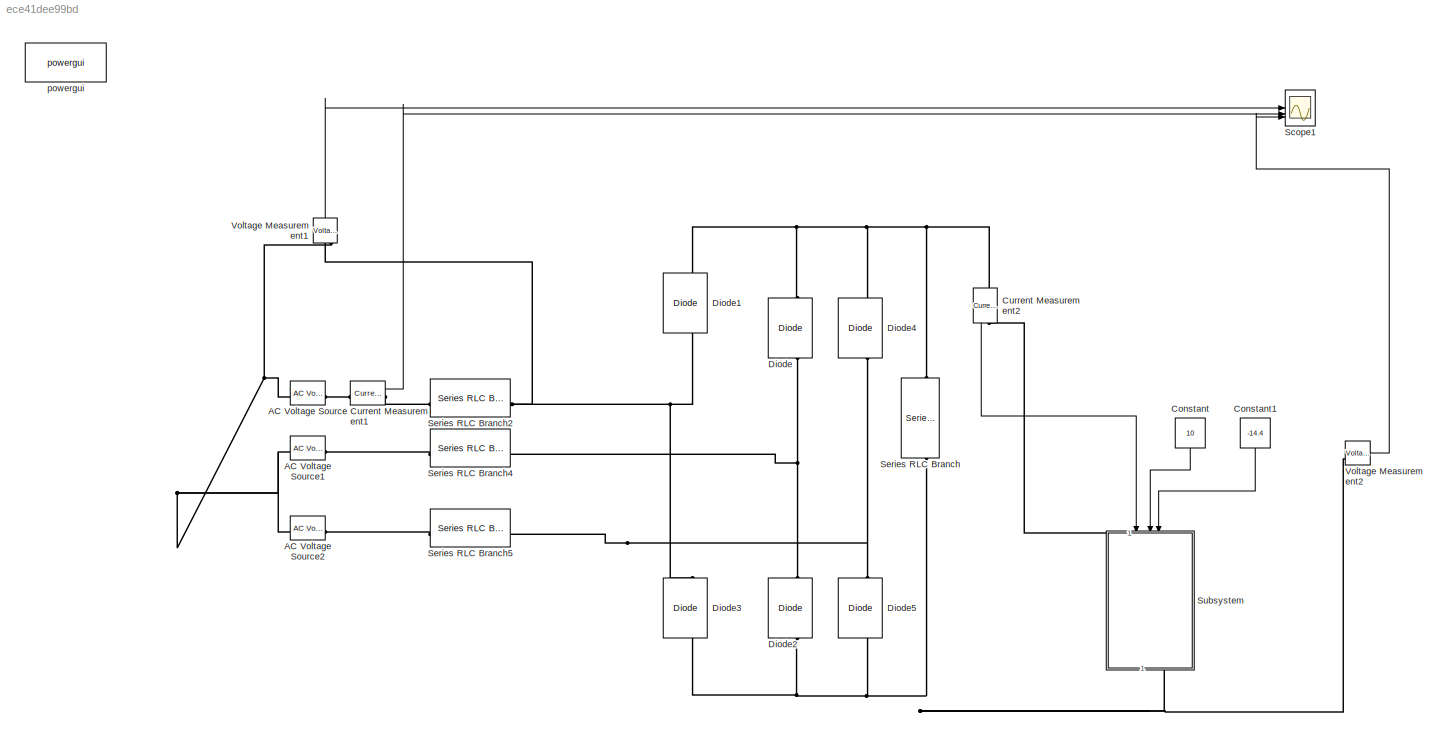
MODEL slx_ece41dee99bd
KIND model
CONFIG AbsTol = auto
CONFIG EnableMultiTasking = off
CONFIG FixedStep = auto
CONFIG MaxStep = tstepMax
CONFIG MinStep = auto
CONFIG RelTol = 1e-3
CONFIG SampleTimeConstraint = Unconstrained
CONFIG SolverName = VariableStepAuto
CONFIG StartTime = 0.0
CONFIG StopTime = 400e-3
BLOCK [Reference] AC Voltage Source  REF=spsACVoltageSourceLib/AC Voltage Source
  LibrarySourceBlock = sps_lib/Sources/AC Voltage Source
  NameLocation = left
  SourceBlock = spsACVoltageSourceLib/AC Voltage Source
  SourceType = AC Voltage Source
BLOCK [Reference] AC Voltage Source1  REF=spsACVoltageSourceLib/AC Voltage Source
  LibrarySourceBlock = sps_lib/Sources/AC Voltage Source
  NameLocation = left
  SourceBlock = spsACVoltageSourceLib/AC Voltage Source
  SourceType = AC Voltage Source
BLOCK [Reference] AC Voltage Source2  REF=spsACVoltageSourceLib/AC Voltage Source
  LibrarySourceBlock = sps_lib/Sources/AC Voltage Source
  NameLocation = left
  SourceBlock = spsACVoltageSourceLib/AC Voltage Source
  SourceType = AC Voltage Source
BLOCK [Constant] Constant
  NameLocation = left
  Value = 10
BLOCK [Constant] Constant1
  NameLocation = left
  Value = -14.4
BLOCK [Reference] Current Measurement1  REF=spsCurrentMeasurementLib/Current Measurement
  LibrarySourceBlock = sps_lib/Sensors and Measurements/Current Measurement
  SourceBlock = spsCurrentMeasurementLib/Current Measurement
  SourceType = Current Measurement
  UserDataPersistent = on
BLOCK [Reference] Current Measurement2  REF=spsCurrentMeasurementLib/Current Measurement
  LibrarySourceBlock = sps_lib/Sensors and Measurements/Current Measurement
  NameLocation = left
  SourceBlock = spsCurrentMeasurementLib/Current Measurement
  SourceType = Current Measurement
  UserDataPersistent = on
BLOCK [Reference] Diode  REF=spsDiodeLib/Diode
  LibrarySourceBlock = sps_lib/Power Electronics/Diode
  NameLocation = right
  SourceBlock = spsDiodeLib/Diode
  SourceType = Diode
BLOCK [Reference] Diode1  REF=spsDiodeLib/Diode
  LibrarySourceBlock = sps_lib/Power Electronics/Diode
  NameLocation = right
  SourceBlock = spsDiodeLib/Diode
  SourceType = Diode
BLOCK [Reference] Diode2  REF=spsDiodeLib/Diode
  LibrarySourceBlock = sps_lib/Power Electronics/Diode
  NameLocation = right
  SourceBlock = spsDiodeLib/Diode
  SourceType = Diode
BLOCK [Reference] Diode3  REF=spsDiodeLib/Diode
  LibrarySourceBlock = sps_lib/Power Electronics/Diode
  NameLocation = right
  SourceBlock = spsDiodeLib/Diode
  SourceType = Diode
BLOCK [Reference] Diode4  REF=spsDiodeLib/Diode
  LibrarySourceBlock = sps_lib/Power Electronics/Diode
  NameLocation = right
  SourceBlock = spsDiodeLib/Diode
  SourceType = Diode
BLOCK [Reference] Diode5  REF=spsDiodeLib/Diode
  LibrarySourceBlock = sps_lib/Power Electronics/Diode
  NameLocation = right
  SourceBlock = spsDiodeLib/Diode
  SourceType = Diode
BLOCK [Scope] Scope1
  Floating = off
  NumInputPorts = 4
  ScopeSpecificationString = Simulink.scopes.TimeScopeBlockCfg('CurrentConfiguration', extmgr.ConfigurationSet(extmgr.Configuration('Core','General UI',true,'FigureColor',[1 1 1],'DisplayFullSourceName',true),extmgr.Configuration('Core','Source UI',true),extmgr.Configuration('Sources','WiredSimulink',true,'DataLoggingVariableName','OutputData1','DataLogging',true,'DataLoggingMaxPoints','453'),extmgr.Configuration('Visuals','T...<+4376ch>
BLOCK [Reference] Series RLC Branch  REF=spsSeriesRLCBranchLib/Series RLC Branch
  LibrarySourceBlock = sps_lib/Passives/Series RLC Branch
  NameLocation = left
  SourceBlock = spsSeriesRLCBranchLib/Series RLC Branch
  SourceType = Series RLC Branch
BLOCK [Reference] Series RLC Branch2  REF=spsSeriesRLCBranchLib/Series RLC Branch
  LibrarySourceBlock = sps_lib/Passives/Series RLC Branch
  NameLocation = top
  SourceBlock = spsSeriesRLCBranchLib/Series RLC Branch
  SourceType = Series RLC Branch
BLOCK [Reference] Series RLC Branch4  REF=spsSeriesRLCBranchLib/Series RLC Branch
  LibrarySourceBlock = sps_lib/Passives/Series RLC Branch
  NameLocation = top
  SourceBlock = spsSeriesRLCBranchLib/Series RLC Branch
  SourceType = Series RLC Branch
BLOCK [Reference] Series RLC Branch5  REF=spsSeriesRLCBranchLib/Series RLC Branch
  LibrarySourceBlock = sps_lib/Passives/Series RLC Branch
  NameLocation = top
  SourceBlock = spsSeriesRLCBranchLib/Series RLC Branch
  SourceType = Series RLC Branch
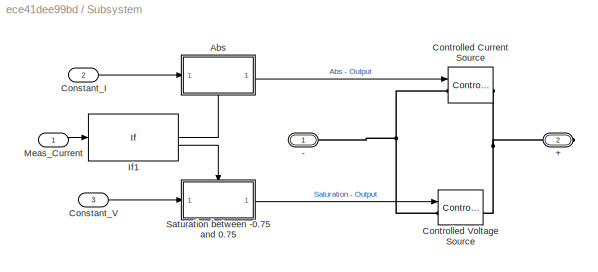
BLOCK [SubSystem] Subsystem
  NameLocation = left
  PortSchema = {"entries":[{"content":{"sides":[{"content":{"connectorIds":["LConn1","In1","In2","In3"]},"type":"ConnectorPlacement.EquallySpacedRectSide","uuid":"feaae4e9-bb6a-4e16-aae7-51a0d38361ce"},{"content":{"connectorIds":["RConn1"],"side":"RIGHT"},"type":"ConnectorPlacement.EquallySpacedRectSide","uuid":"0242307e-3fb3-4380-a5a2-342063310801"},{"content":{"side":"TOP"},"type":"ConnectorPlacement.EquallySp...<+245ch>
BLOCK [PMIOPort] Subsystem/+
  Port = 2
  Side = Right
BLOCK [PMIOPort] Subsystem/-
  NameLocation = top
  Side = Left
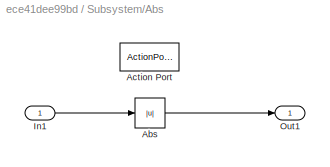
BLOCK [SubSystem] Subsystem/Abs
  NameLocation = top
  TreatAsAtomicUnit = on
BLOCK [Abs] Subsystem/Abs/Abs
  OutDataTypeStr = double
BLOCK [ActionPort] Subsystem/Abs/Action Port
  ActionPortLabel = if(u1 > 10)
BLOCK [Inport] Subsystem/Abs/In1
BLOCK [Outport] Subsystem/Abs/Out1
BLOCK [Inport] Subsystem/Constant_I
  Port = 2
BLOCK [Inport] Subsystem/Constant_V
  Port = 3
BLOCK [Reference] Subsystem/Controlled Current Source  REF=spsControlledCurrentSourceLib/Controlled Current Source
  LibrarySourceBlock = sps_lib/Sources/Controlled Current Source
  NameLocation = left
  SourceBlock = spsControlledCurrentSourceLib/Controlled Current Source
  SourceType = Controlled Current Source
BLOCK [Reference] Subsystem/Controlled Voltage Source  REF=spsControlledVoltageSourceLib/Controlled Voltage Source
  LibrarySourceBlock = sps_lib/Sources/Controlled Voltage Source
  NameLocation = left
  SourceBlock = spsControlledVoltageSourceLib/Controlled Voltage Source
  SourceType = Controlled Voltage Source
BLOCK [If] Subsystem/If1
  IfExpression = u1 > 10
BLOCK [Inport] Subsystem/Meas_Current
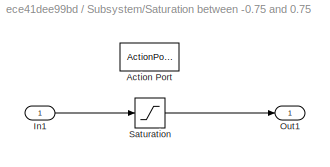
BLOCK [SubSystem] Subsystem/Saturation between -0.75 and 0.75
  TreatAsAtomicUnit = on
BLOCK [ActionPort] Subsystem/Saturation between -0.75 and 0.75/Action Port
  ActionPortLabel = else
BLOCK [Inport] Subsystem/Saturation between -0.75 and 0.75/In1
BLOCK [Outport] Subsystem/Saturation between -0.75 and 0.75/Out1
BLOCK [Saturate] Subsystem/Saturation between -0.75 and 0.75/Saturation
  LowerLimit = -0.75
  UpperLimit = 0.75
BLOCK [Reference] Voltage Measurement1  REF=spsVoltageMeasurementLib/Voltage Measurement
  LibrarySourceBlock = sps_lib/Sensors and Measurements/Voltage Measurement
  NameLocation = right
  SourceBlock = spsVoltageMeasurementLib/Voltage Measurement
  SourceType = Voltage Measurement
  UserDataPersistent = on
BLOCK [Reference] Voltage Measurement2  REF=spsVoltageMeasurementLib/Voltage Measurement
  LibrarySourceBlock = sps_lib/Sensors and Measurements/Voltage Measurement
  SourceBlock = spsVoltageMeasurementLib/Voltage Measurement
  SourceType = Voltage Measurement
  UserDataPersistent = on
BLOCK [Reference] powergui  REF=spspowerguiLib/powergui
  LibrarySourceBlock = sps_lib/powergui
  Priority = 1
  SourceBlock = spspowerguiLib/powergui
  SourceType = PSB option menu block
LINE Constant1:1 -> Subsystem:3
LINE Constant:1 -> Subsystem:2
LINE Current Measurement1:1 -> Scope1:2
LINE Current Measurement2:1 -> Subsystem:1
LINE Subsystem/Abs/Abs:1 -> Subsystem/Abs/Out1:1
LINE Subsystem/Abs/In1:1 -> Subsystem/Abs/Abs:1
LINE Subsystem/Abs:1 -> Subsystem/Controlled Current Source:1
LINE Subsystem/Constant_I:1 -> Subsystem/Abs:1
LINE Subsystem/Constant_V:1 -> Subsystem/Saturation between -0.75 and 0.75:1
LINE Subsystem/If1:1 -> Subsystem/Abs:ifaction
LINE Subsystem/If1:2 -> Subsystem/Saturation between -0.75 and 0.75:ifaction
LINE Subsystem/Meas_Current:1 -> Subsystem/If1:1
LINE Subsystem/Saturation between -0.75 and 0.75/In1:1 -> Subsystem/Saturation between -0.75 and 0.75/Saturation:1
LINE Subsystem/Saturation between -0.75 and 0.75/Saturation:1 -> Subsystem/Saturation between -0.75 and 0.75/Out1:1
LINE Subsystem/Saturation between -0.75 and 0.75:1 -> Subsystem/Controlled Voltage Source:1
LINE Voltage Measurement1:1 -> Scope1:1
LINE Voltage Measurement2:1 -> Scope1:3
PNET net1: AC Voltage Source1:LConn1 -- AC Voltage Source2:LConn1 -- AC Voltage Source:LConn1 -- Voltage Measurement1:LConn2
PLINE AC Voltage Source1:RConn1 -- Series RLC Branch4:RConn1
PLINE AC Voltage Source2:RConn1 -- Series RLC Branch5:RConn1
PLINE AC Voltage Source:RConn1 -- Current Measurement1:LConn1
PLINE Current Measurement1:RConn1 -- Series RLC Branch2:RConn1
PNET net2: Current Measurement2:LConn1 -- Diode1:RConn1 -- Diode4:RConn1 -- Diode:RConn1 -- Series RLC Branch:LConn1
PLINE Current Measurement2:RConn1 -- Subsystem:LConn1
PNET net3: Diode1:LConn1 -- Diode3:RConn1 -- Series RLC Branch2:LConn1 -- Voltage Measurement1:LConn1
PNET net4: Diode2:LConn1 -- Diode3:LConn1 -- Diode5:LConn1 -- Series RLC Branch:RConn1 -- Subsystem:RConn1 -- Voltage Measurement2:LConn2
PNET net5: Diode2:RConn1 -- Diode:LConn1 -- Series RLC Branch4:LConn1
PNET net6: Diode4:LConn1 -- Diode5:RConn1 -- Series RLC Branch5:LConn1
PNET net7: Subsystem/+:RConn1 -- Subsystem/Controlled Current Source:RConn1 -- Subsystem/Controlled Voltage Source:RConn1
PNET net8: Subsystem/-:RConn1 -- Subsystem/Controlled Current Source:LConn1 -- Subsystem/Controlled Voltage Source:LConn1
note: PNET lines group multi-terminal physical nets as a canonical sorted terminal list (undirected conserving connections); 2-terminal nets keep the pairwise PLINE form
